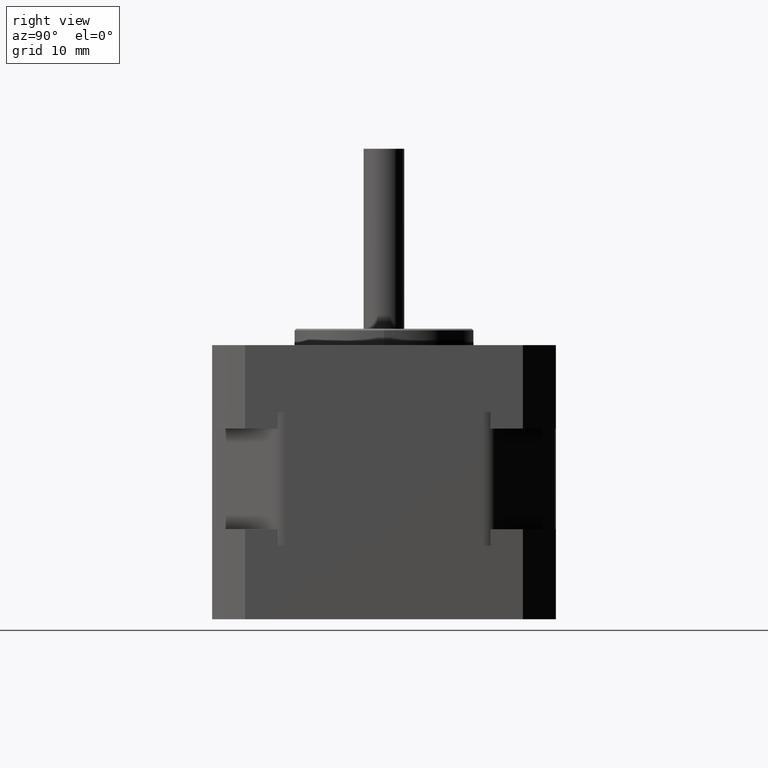
[diagram: clean part render]
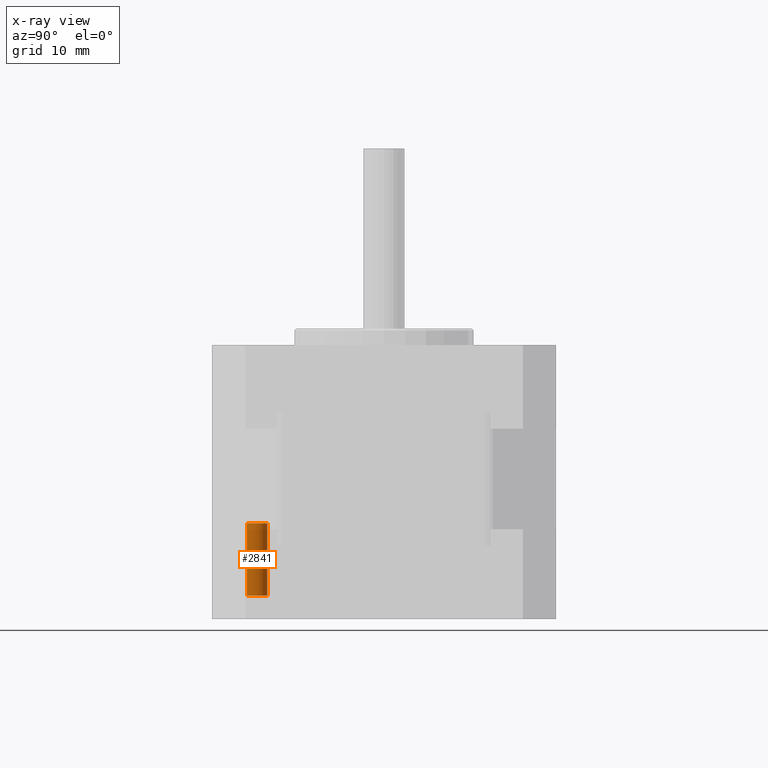
[diagram: x-ray — body ghosted, one internal face saturated and labeled with its STEP entity id]
A machine part, right view, then the same camera in x-ray: the body is ghosted and one INTERNAL B-rep face — a face not visible from any outside direction — is saturated and labeled: STEP entity #2841.
In plain terms, the highlighted cylindrical surface (bore or boss wall) has radius 1.25 mm, axis along (0, 0, 1).
Its self-contained STEP definition (entity closure, byte-faithful):
#78=FACE_BOUND('',#593,.T.);
#359=FACE_OUTER_BOUND('',#592,.T.);
#592=EDGE_LOOP('',(#2271));
#593=EDGE_LOOP('',(#2272));
#1113=CIRCLE('',#3172,1.25);
#1115=CIRCLE('',#3175,1.25);
#1322=VERTEX_POINT('',#4761);
#1324=VERTEX_POINT('',#4766);
#1645=EDGE_CURVE('',#1322,#1322,#1113,.T.);
#1647=EDGE_CURVE('',#1324,#1324,#1115,.T.);
#2271=ORIENTED_EDGE('',*,*,#1647,.T.);
#2272=ORIENTED_EDGE('',*,*,#1645,.F.);
#2526=CYLINDRICAL_SURFACE('',#3174,1.25);
#2841=ADVANCED_FACE('',(#359,#78),#2526,.T.);
#3172=AXIS2_PLACEMENT_3D('',#4762,#3938,#3939);
#3174=AXIS2_PLACEMENT_3D('',#4765,#3942,#3943);
#3175=AXIS2_PLACEMENT_3D('',#4767,#3944,#3945);
#3938=DIRECTION('center_axis',(0.,1.06548401849177E-32,1.));
#3939=DIRECTION('ref_axis',(0.,-1.,0.));
#3942=DIRECTION('center_axis',(0.,1.06548401849177E-32,1.));
#3943=DIRECTION('ref_axis',(0.,1.,0.));
#3944=DIRECTION('center_axis',(0.,1.06548401849177E-32,1.));
#3945=DIRECTION('ref_axis',(0.,1.,0.));
#4761=CARTESIAN_POINT('',(-15.5,-14.25,-5.4261525));
#4762=CARTESIAN_POINT('Origin',(-15.5,-15.5,-5.4261525));
#4765=CARTESIAN_POINT('Origin',(-15.5,-15.5,-9.7));
#4766=CARTESIAN_POINT('',(-15.5,-14.25,-14.25));
#4767=CARTESIAN_POINT('Origin',(-15.5,-15.5,-14.25));